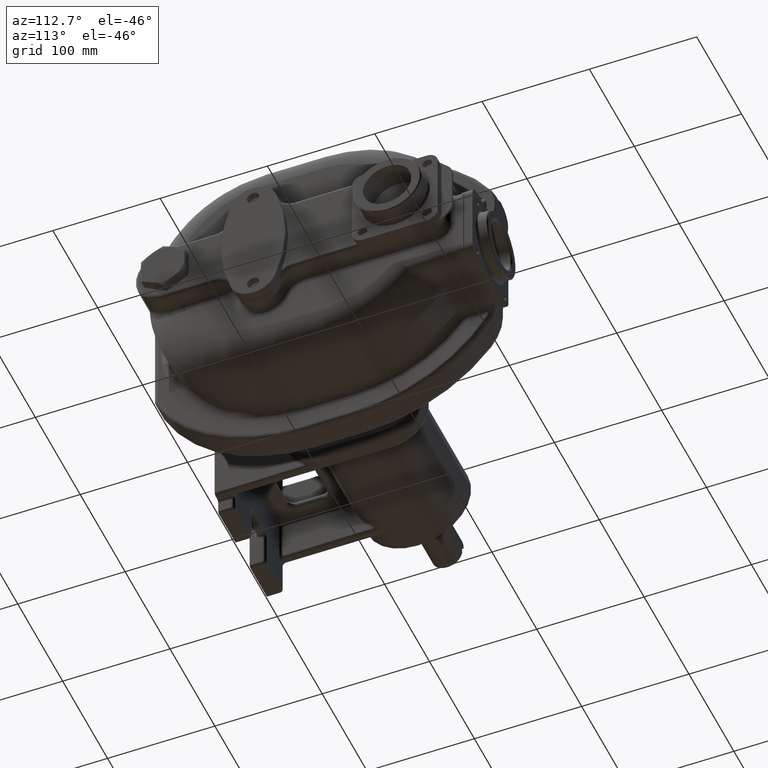
[diagram: clean part render]
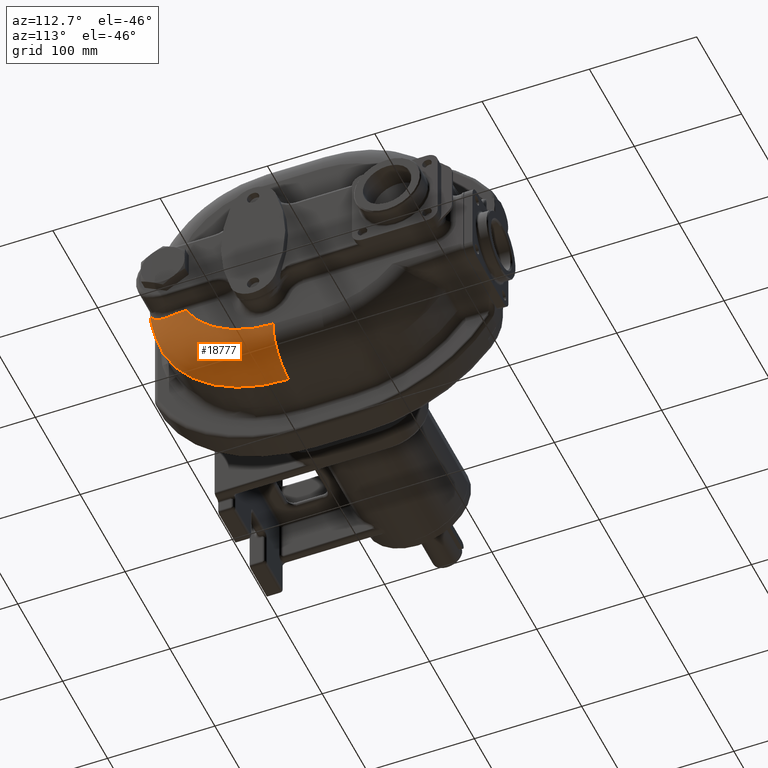
[diagram: same view with one face highlighted and labeled with its STEP entity id]
A machine part, auxiliary view. The second image highlights one B-rep face of the part: STEP entity #18777.
In plain terms, the highlighted toroidal blend (fillet) surface has major radius 91.5 mm and minor (blend) radius 35 mm.
Its self-contained STEP definition (entity closure, byte-faithful):
#4875=CARTESIAN_POINT('',(5.95E1,4.5E0,-4.5E0));
#4876=DIRECTION('',(1.E0,0.E0,0.E0));
#4877=DIRECTION('',(0.E0,-8.855831510342E-1,-4.644808743149E-1));
#4878=AXIS2_PLACEMENT_3D('',#4875,#4876,#4877);
#6352=CARTESIAN_POINT('',(2.45E1,-8.7E1,-4.5E0));
#6353=DIRECTION('',(0.E0,0.E0,-1.E0));
#6354=DIRECTION('',(4.343204760822E-1,-9.007584160338E-1,0.E0));
#6355=AXIS2_PLACEMENT_3D('',#6352,#6353,#6354);
#6357=CARTESIAN_POINT('',(5.848180130472E1,-8.625933604142E1,
-4.620023547849E1));
#6358=CARTESIAN_POINT('',(5.842253325297E1,-8.653327555771E1,
-4.617962204333E1));
#6359=CARTESIAN_POINT('',(5.829850803454E1,-8.708452955949E1,
-4.613054708625E1));
#6360=CARTESIAN_POINT('',(5.809584216524E1,-8.792089973844E1,
-4.603270987607E1));
#6361=CARTESIAN_POINT('',(5.787620082708E1,-8.876685547290E1,
-4.590984828619E1));
#6362=CARTESIAN_POINT('',(5.763944916221E1,-8.962161074732E1,
-4.576124832936E1));
#6363=CARTESIAN_POINT('',(5.738537908659E1,-9.048470323786E1,
-4.558614756567E1));
#6364=CARTESIAN_POINT('',(5.711384759450E1,-9.135544652004E1,
-4.538380857435E1));
#6365=CARTESIAN_POINT('',(5.682472977606E1,-9.223313304756E1,
-4.515349708393E1));
#6366=CARTESIAN_POINT('',(5.651794120444E1,-9.311696451406E1,
-4.489449819854E1));
#6367=CARTESIAN_POINT('',(5.619343724602E1,-9.400607220212E1,
-4.460611955383E1));
#6368=CARTESIAN_POINT('',(5.585121960564E1,-9.489951087834E1,
-4.428769890984E1));
#6369=CARTESIAN_POINT('',(5.549134114392E1,-9.579626044121E1,
-4.393861085392E1));
#6370=CARTESIAN_POINT('',(5.511391137758E1,-9.669522618123E1,
-4.355827402802E1));
#6371=CARTESIAN_POINT('',(5.471910199773E1,-9.759524018120E1,
-4.314615842545E1));
#6372=CARTESIAN_POINT('',(5.430715316288E1,-9.849506200637E1,
-4.270179345219E1));
#6373=CARTESIAN_POINT('',(5.387837983408E1,-9.939338064566E1,
-4.222477604051E1));
#6374=CARTESIAN_POINT('',(5.343317876871E1,-1.002888163449E2,
-4.171477942208E1));
#6375=CARTESIAN_POINT('',(5.297203631799E1,-1.011799223560E2,
-4.117156278291E1));
#6376=CARTESIAN_POINT('',(5.249553682059E1,-1.020651872318E2,
-4.059498161621E1));
#6377=CARTESIAN_POINT('',(5.200437227147E1,-1.029430365995E2,
-3.998499965806E1));
#6378=CARTESIAN_POINT('',(5.149935301946E1,-1.038118352267E2,
-3.934170229072E1));
#6379=CARTESIAN_POINT('',(5.098142004651E1,-1.046698886783E2,
-3.866531233167E1));
#6380=CARTESIAN_POINT('',(5.045165864054E1,-1.055154452178E2,
-3.795620833167E1));
#6381=CARTESIAN_POINT('',(4.991131415830E1,-1.063466971035E2,
-3.721494682380E1));
#6382=CARTESIAN_POINT('',(4.936180888522E1,-1.071617830728E2,
-3.644228792043E1));
#6383=CARTESIAN_POINT('',(4.880476087210E1,-1.079587906359E2,
-3.563922643445E1));
#6384=CARTESIAN_POINT('',(4.824200291331E1,-1.087357607408E2,-3.480702732E1));
#6385=CARTESIAN_POINT('',(4.767560096931E1,-1.094906949889E2,
-3.394726603572E1));
#6386=CARTESIAN_POINT('',(4.710786944287E1,-1.102215676525E2,
-3.306187206510E1));
#6387=CARTESIAN_POINT('',(4.654137983400E1,-1.109263448331E2,
-3.215317256452E1));
#6388=CARTESIAN_POINT('',(4.597895718368E1,-1.116030144631E2,
-3.122392947386E1));
#6389=CARTESIAN_POINT('',(4.542365919712E1,-1.122496287809E2,
-3.027736319077E1));
#6390=CARTESIAN_POINT('',(4.487873035717E1,-1.128643628317E2,
-2.931714977194E1));
#6391=CARTESIAN_POINT('',(4.434752470295E1,-1.134455898303E2,
-2.834737693270E1));
#6392=CARTESIAN_POINT('',(4.383339826845E1,-1.139919665698E2,
-2.737245223144E1));
#6393=CARTESIAN_POINT('',(4.333957322306E1,-1.145025234914E2,
-2.639695403768E1));
#6394=CARTESIAN_POINT('',(4.286898373494E1,-1.149767487213E2,
-2.542542423409E1));
#6395=CARTESIAN_POINT('',(4.242413995505E1,-1.154146345097E2,
-2.446215529541E1));
#6396=CARTESIAN_POINT('',(4.200701736978E1,-1.158166900143E2,
-2.351097526532E1));
#6397=CARTESIAN_POINT('',(4.161899050232E1,-1.161839135196E2,
-2.257506084791E1));
#6398=CARTESIAN_POINT('',(4.126082641190E1,-1.165177206247E2,
-2.165682219586E1));
#6399=CARTESIAN_POINT('',(4.093273020791E1,-1.168198449036E2,
-2.075785949940E1));
#6400=CARTESIAN_POINT('',(4.063443259837E1,-1.170922237666E2,
-1.987899660884E1));
#6401=CARTESIAN_POINT('',(4.036529448485E1,-1.173368913506E2,
-1.902035559856E1));
#6402=CARTESIAN_POINT('',(4.012441777306E1,-1.175558838872E2,
-1.818146638185E1));
#6403=CARTESIAN_POINT('',(3.991074354674E1,-1.177511691968E2,
-1.736136535058E1));
#6404=CARTESIAN_POINT('',(3.972315580989E1,-1.179245780533E2,-1.655877214E1));
#6405=CARTESIAN_POINT('',(3.956053197103E1,-1.180777863153E2,
-1.577212698109E1));
#6406=CARTESIAN_POINT('',(3.942178776759E1,-1.182123025014E2,
-1.499961195066E1));
#6407=CARTESIAN_POINT('',(3.930593460350E1,-1.183294416644E2,
-1.423928079757E1));
#6408=CARTESIAN_POINT('',(3.921210522599E1,-1.184303245502E2,
-1.348910095814E1));
#6409=CARTESIAN_POINT('',(3.913957210744E1,-1.185158795882E2,
-1.274698723417E1));
#6410=CARTESIAN_POINT('',(3.908775888510E1,-1.185868474803E2,
-1.201082236161E1));
#6411=CARTESIAN_POINT('',(3.905624604474E1,-1.186437867166E2,
-1.127847097795E1));
#6412=CARTESIAN_POINT('',(3.904477554928E1,-1.186870777340E2,
-1.054778486033E1));
#6413=CARTESIAN_POINT('',(3.905325308137E1,-1.187169256954E2,
-9.816607439652E0));
#6414=CARTESIAN_POINT('',(3.908174847079E1,-1.187333618420E2,
-9.082772880268E0));
#6415=CARTESIAN_POINT('',(3.913049564697E1,-1.187362423382E2,
-8.344106486567E0));
#6416=CARTESIAN_POINT('',(3.919988832944E1,-1.187252460542E2,
-7.598443259390E0));
#6417=CARTESIAN_POINT('',(3.929047932605E1,-1.186998699632E2,
-6.843593037512E0));
#6418=CARTESIAN_POINT('',(3.940297557498E1,-1.186594199054E2,
-6.077393969029E0));
#6419=CARTESIAN_POINT('',(3.953820196640E1,-1.186030199269E2,
-5.297785082287E0));
#6420=CARTESIAN_POINT('',(3.964420317599E1,-1.185540348685E2,
-4.767525003996E0));
#6421=CARTESIAN_POINT('',(3.970121666288E1,-1.185265445612E2,-4.5E0));
#6423=CARTESIAN_POINT('',(5.95E1,-7.653085831964E1,-4.7E1));
#6424=CARTESIAN_POINT('',(5.949999998210E1,-7.695982414820E1,
-4.696156459939E1));
#6425=CARTESIAN_POINT('',(5.948876018256E1,-7.781230571232E1,
-4.688606853637E1));
#6426=CARTESIAN_POINT('',(5.943893536700E1,-7.907303419820E1,
-4.677693883095E1));
#6427=CARTESIAN_POINT('',(5.935686931795E1,-8.031614512452E1,
-4.667172841271E1));
#6428=CARTESIAN_POINT('',(5.924325901770E1,-8.154143950984E1,
-4.657030200291E1));
#6429=CARTESIAN_POINT('',(5.909877716852E1,-8.274885361577E1,
-4.647251632043E1));
#6430=CARTESIAN_POINT('',(5.892407031964E1,-8.393827636027E1,
-4.637823719677E1));
#6431=CARTESIAN_POINT('',(5.871979091632E1,-8.510947320601E1,
-4.628734619725E1));
#6432=CARTESIAN_POINT('',(5.856426307818E1,-8.587819411860E1,
-4.622891524642E1));
#6433=CARTESIAN_POINT('',(5.848180130472E1,-8.625933604142E1,
-4.620023547849E1));
#6435=CARTESIAN_POINT('',(2.45E1,4.5E0,-9.6E1));
#6436=DIRECTION('',(0.E0,1.E0,0.E0));
#6437=DIRECTION('',(1.E0,0.E0,0.E0));
#6438=AXIS2_PLACEMENT_3D('',#6435,#6436,#6437);
#6449=CARTESIAN_POINT('',(2.45E1,4.5E0,-4.5E0));
#6450=DIRECTION('',(1.E0,0.E0,0.E0));
#6451=DIRECTION('',(0.E0,-1.E0,0.E0));
#6452=AXIS2_PLACEMENT_3D('',#6449,#6450,#6451);
#8485=CARTESIAN_POINT('',(5.95E1,4.5E0,-9.6E1));
#8487=VERTEX_POINT('',#8485);
#8489=CARTESIAN_POINT('',(2.45E1,4.5E0,-1.31E2));
#8491=VERTEX_POINT('',#8489);
#8493=CARTESIAN_POINT('',(2.45E1,-1.22E2,-4.5E0));
#8494=VERTEX_POINT('',#8493);
#8505=CARTESIAN_POINT('',(5.95E1,-7.653085831963E1,-4.699999999981E1));
#8506=VERTEX_POINT('',#8505);
#8602=VERTEX_POINT('',#6433);
#8604=VERTEX_POINT('',#6421);
#18761=CARTESIAN_POINT('',(2.45E1,4.5E0,-4.5E0));
#18762=DIRECTION('',(-1.E0,0.E0,0.E0));
#18763=DIRECTION('',(0.E0,-9.999999850914E-1,1.726766789819E-4));
#18764=AXIS2_PLACEMENT_3D('',#18761,#18762,#18763);
#18765=TOROIDAL_SURFACE('',#18764,9.15E1,3.5E1);
#18766=ORIENTED_EDGE('',*,*,#16336,.T.);
#18768=ORIENTED_EDGE('',*,*,#18767,.T.);
#18770=ORIENTED_EDGE('',*,*,#18769,.F.);
#18771=ORIENTED_EDGE('',*,*,#17266,.F.);
#18773=ORIENTED_EDGE('',*,*,#18772,.F.);
#18774=ORIENTED_EDGE('',*,*,#18754,.F.);
#18775=EDGE_LOOP('',(#18766,#18768,#18770,#18771,#18773,#18774));
#18776=FACE_OUTER_BOUND('',#18775,.F.);
#18777=ADVANCED_FACE('',(#18776),#18765,.T.);
#4879=CIRCLE('',#4878,9.15E1);
#6356=CIRCLE('',#6355,3.5E1);
#6422=B_SPLINE_CURVE_WITH_KNOTS('',3,(#6357,#6358,#6359,#6360,#6361,#6362,#6363,
#6364,#6365,#6366,#6367,#6368,#6369,#6370,#6371,#6372,#6373,#6374,#6375,#6376,
#6377,#6378,#6379,#6380,#6381,#6382,#6383,#6384,#6385,#6386,#6387,#6388,#6389,
#6390,#6391,#6392,#6393,#6394,#6395,#6396,#6397,#6398,#6399,#6400,#6401,#6402,
#6403,#6404,#6405,#6406,#6407,#6408,#6409,#6410,#6411,#6412,#6413,#6414,#6415,
#6416,#6417,#6418,#6419,#6420,#6421),.UNSPECIFIED.,.F.,.F.,(4,1,1,1,1,1,1,1,1,1,
1,1,1,1,1,1,1,1,1,1,1,1,1,1,1,1,1,1,1,1,1,1,1,1,1,1,1,1,1,1,1,1,1,1,1,1,1,1,1,1,
1,1,1,1,1,1,1,1,1,1,1,1,4),(0.E0,1.612903225806E-2,3.225806451613E-2,
4.838709677419E-2,6.451612903226E-2,8.064516129032E-2,9.677419354839E-2,
1.129032258065E-1,1.290322580645E-1,1.451612903226E-1,1.612903225806E-1,
1.774193548387E-1,1.935483870968E-1,2.096774193548E-1,2.258064516129E-1,
2.419354838710E-1,2.580645161290E-1,2.741935483871E-1,2.903225806452E-1,
3.064516129032E-1,3.225806451613E-1,3.387096774194E-1,3.548387096774E-1,
3.709677419355E-1,3.870967741935E-1,4.032258064516E-1,4.193548387097E-1,
4.354838709677E-1,4.516129032258E-1,4.677419354839E-1,4.838709677419E-1,5.E-1,
5.161290322581E-1,5.322580645161E-1,5.483870967742E-1,5.645161290323E-1,
5.806451612903E-1,5.967741935484E-1,6.129032258065E-1,6.290322580645E-1,
6.451612903226E-1,6.612903225806E-1,6.774193548387E-1,6.935483870968E-1,
7.096774193548E-1,7.258064516129E-1,7.419354838710E-1,7.580645161290E-1,
7.741935483871E-1,7.903225806452E-1,8.064516129032E-1,8.225806451613E-1,
8.387096774194E-1,8.548387096774E-1,8.709677419355E-1,8.870967741935E-1,
9.032258064516E-1,9.193548387097E-1,9.354838709677E-1,9.516129032258E-1,
9.677419354839E-1,9.838709677419E-1,1.E0),.UNSPECIFIED.);
#6434=B_SPLINE_CURVE_WITH_KNOTS('',3,(#6423,#6424,#6425,#6426,#6427,#6428,#6429,
#6430,#6431,#6432,#6433),.UNSPECIFIED.,.F.,.F.,(4,1,1,1,1,1,1,1,4),(0.E0,
1.25E-1,2.5E-1,3.75E-1,5.E-1,6.25E-1,7.5E-1,8.75E-1,1.E0),.UNSPECIFIED.);
#6439=CIRCLE('',#6438,3.5E1);
#6453=CIRCLE('',#6452,1.265E2);
#16336=EDGE_CURVE('',#8506,#8487,#4879,.T.);
#17266=EDGE_CURVE('',#8604,#8494,#6356,.T.);
#18754=EDGE_CURVE('',#8506,#8602,#6434,.T.);
#18767=EDGE_CURVE('',#8487,#8491,#6439,.T.);
#18769=EDGE_CURVE('',#8494,#8491,#6453,.T.);
#18772=EDGE_CURVE('',#8602,#8604,#6422,.T.);